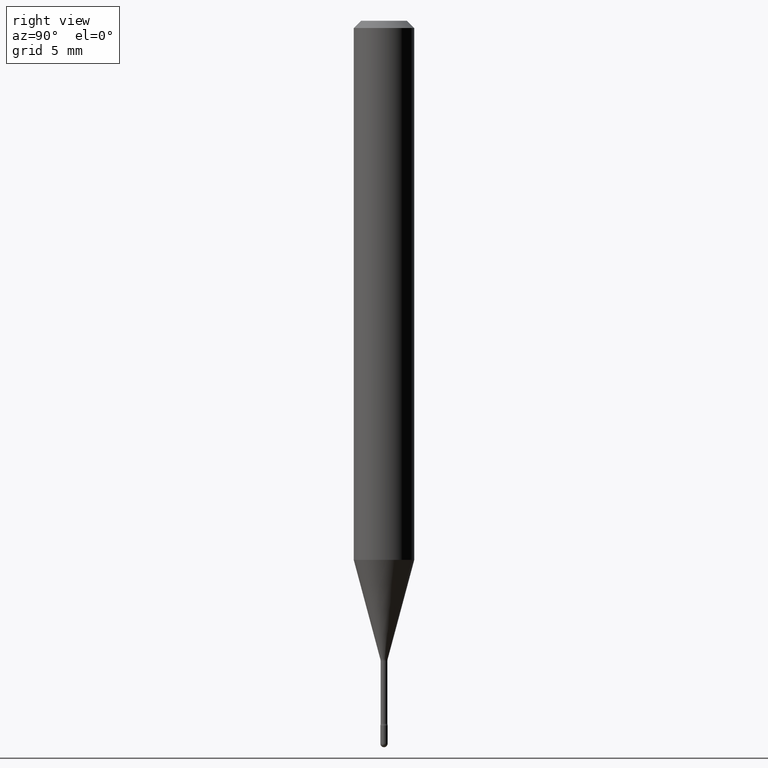
[diagram: clean part render]
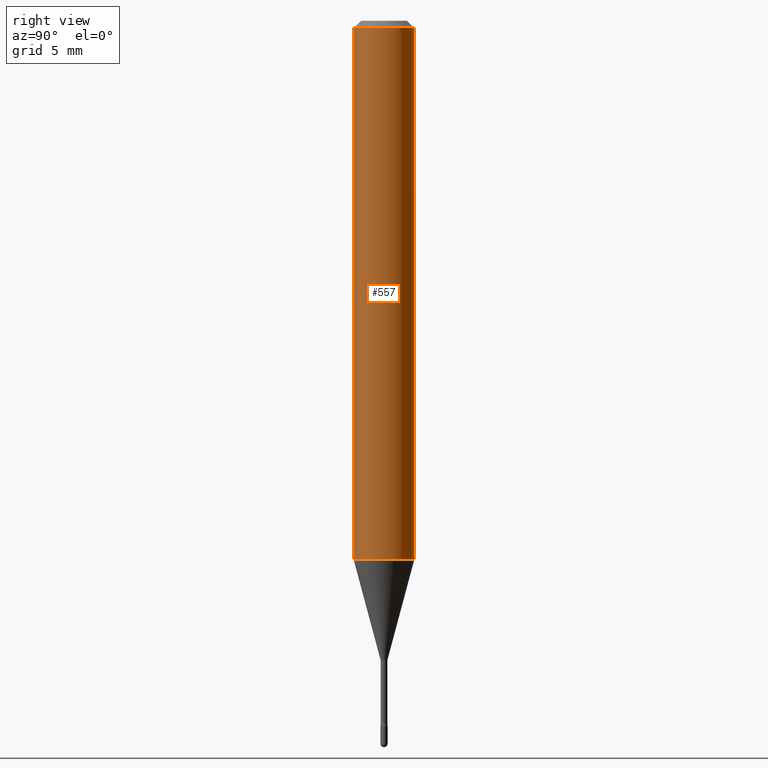
[diagram: same view with one face highlighted and labeled with its STEP entity id]
A machine part, right view. The second image highlights one B-rep face of the part: STEP entity #557.
In plain terms, the highlighted cylindrical surface (edge-blend (fillet) strip) has radius 1.5875 mm, axis along (-0, 0, 1).
Its self-contained STEP definition (entity closure, byte-faithful):
#7 = DIRECTION ( 'NONE',  ( -2.445440204151626769E-29, 3.491522298583058262E-15, 1.000000000000000000 ) ) ;
#14 = VERTEX_POINT ( 'NONE', #174 ) ;
#17 = EDGE_CURVE ( 'NONE', #554, #135, #349, .T. ) ;
#21 = CARTESIAN_POINT ( 'NONE',  ( 4.440892098500896347E-16, 0.06249999999999610034, -1.113057782720306754 ) ) ;
#29 = AXIS2_PLACEMENT_3D ( 'NONE', #478, #7, #178 ) ;
#60 = AXIS2_PLACEMENT_3D ( 'NONE', #473, #485, #421 ) ;
#111 = FACE_OUTER_BOUND ( 'NONE', #422, .T. ) ;
#135 = VERTEX_POINT ( 'NONE', #404 ) ;
#139 = VECTOR ( 'NONE', #153, 39.37007874015748143 ) ;
#149 = EDGE_CURVE ( 'NONE', #235, #14, #359, .T. ) ;
#153 = DIRECTION ( 'NONE',  ( -2.445440204151626769E-29, 3.491522298583058656E-15, 1.000000000000000000 ) ) ;
#174 = CARTESIAN_POINT ( 'NONE',  ( -4.364351673553912750E-16, -0.06250000000000005551, -0.01499999999999986587 ) ) ;
#178 = DIRECTION ( 'NONE',  ( -6.982962677686265922E-15, -1.000000000000000000, 4.370956789862821150E-15 ) ) ;
#181 = CARTESIAN_POINT ( 'NONE',  ( -4.364351673553643551E-16, -0.06250000000000388578, -1.113057782720306310 ) ) ;
#235 = VERTEX_POINT ( 'NONE', #181 ) ;
#256 = VECTOR ( 'NONE', #484, 39.37007874015748143 ) ;
#273 = CARTESIAN_POINT ( 'NONE',  ( -1.169113584055446105E-44, 1.669184350826100908E-30, 4.780733988912460139E-16 ) ) ;
#283 = CIRCLE ( 'NONE', #60, 0.06250000000000000000 ) ;
#310 = ORIENTED_EDGE ( 'NONE', *, *, #149, .F. ) ;
#313 = CIRCLE ( 'NONE', #29, 0.06250000000000000000 ) ;
#316 = CYLINDRICAL_SURFACE ( 'NONE', #470, 0.06250000000000000000 ) ;
#349 = LINE ( 'NONE', #556, #256 ) ;
#359 = LINE ( 'NONE', #538, #139 ) ;
#393 = ORIENTED_EDGE ( 'NONE', *, *, #502, .T. ) ;
#401 = EDGE_CURVE ( 'NONE', #14, #135, #283, .T. ) ;
#404 = CARTESIAN_POINT ( 'NONE',  ( 4.440892098500899305E-16, 0.06249999999999995143, -0.01500000000000030129 ) ) ;
#421 = DIRECTION ( 'NONE',  ( -6.982962677686265922E-15, -1.000000000000000000, 3.483106191921935554E-15 ) ) ;
#422 = EDGE_LOOP ( 'NONE', ( #393, #546, #551, #310 ) ) ;
#449 = DIRECTION ( 'NONE',  ( -2.445440204151626769E-29, 3.491522298583058262E-15, 1.000000000000000000 ) ) ;
#470 = AXIS2_PLACEMENT_3D ( 'NONE', #273, #449, #541 ) ;
#473 = CARTESIAN_POINT ( 'NONE',  ( 3.668160306227460770E-31, -5.237283447874616285E-17, -0.01500000000000008271 ) ) ;
#478 = CARTESIAN_POINT ( 'NONE',  ( 2.721916251408103540E-29, -3.886266067979366571E-15, -1.113057782720306532 ) ) ;
#484 = DIRECTION ( 'NONE',  ( -2.445440204151626769E-29, 3.491522298583058656E-15, 1.000000000000000000 ) ) ;
#485 = DIRECTION ( 'NONE',  ( -2.445440204151626769E-29, 3.491522298583058262E-15, 1.000000000000000000 ) ) ;
#502 = EDGE_CURVE ( 'NONE', #235, #554, #313, .T. ) ;
#538 = CARTESIAN_POINT ( 'NONE',  ( -4.364351673553916201E-16, -0.06250000000000000000, 6.962935425526872046E-16 ) ) ;
#541 = DIRECTION ( 'NONE',  ( -6.982962677686265922E-15, -1.000000000000000000, 3.491522298583057473E-15 ) ) ;
#546 = ORIENTED_EDGE ( 'NONE', *, *, #17, .T. ) ;
#551 = ORIENTED_EDGE ( 'NONE', *, *, #401, .F. ) ;
#554 = VERTEX_POINT ( 'NONE', #21 ) ;
#556 = CARTESIAN_POINT ( 'NONE',  ( 4.440892098500625669E-16, 0.06250000000000000000, 2.598532552298049219E-16 ) ) ;
#557 = ADVANCED_FACE ( 'NONE', ( #111 ), #316, .T. ) ;